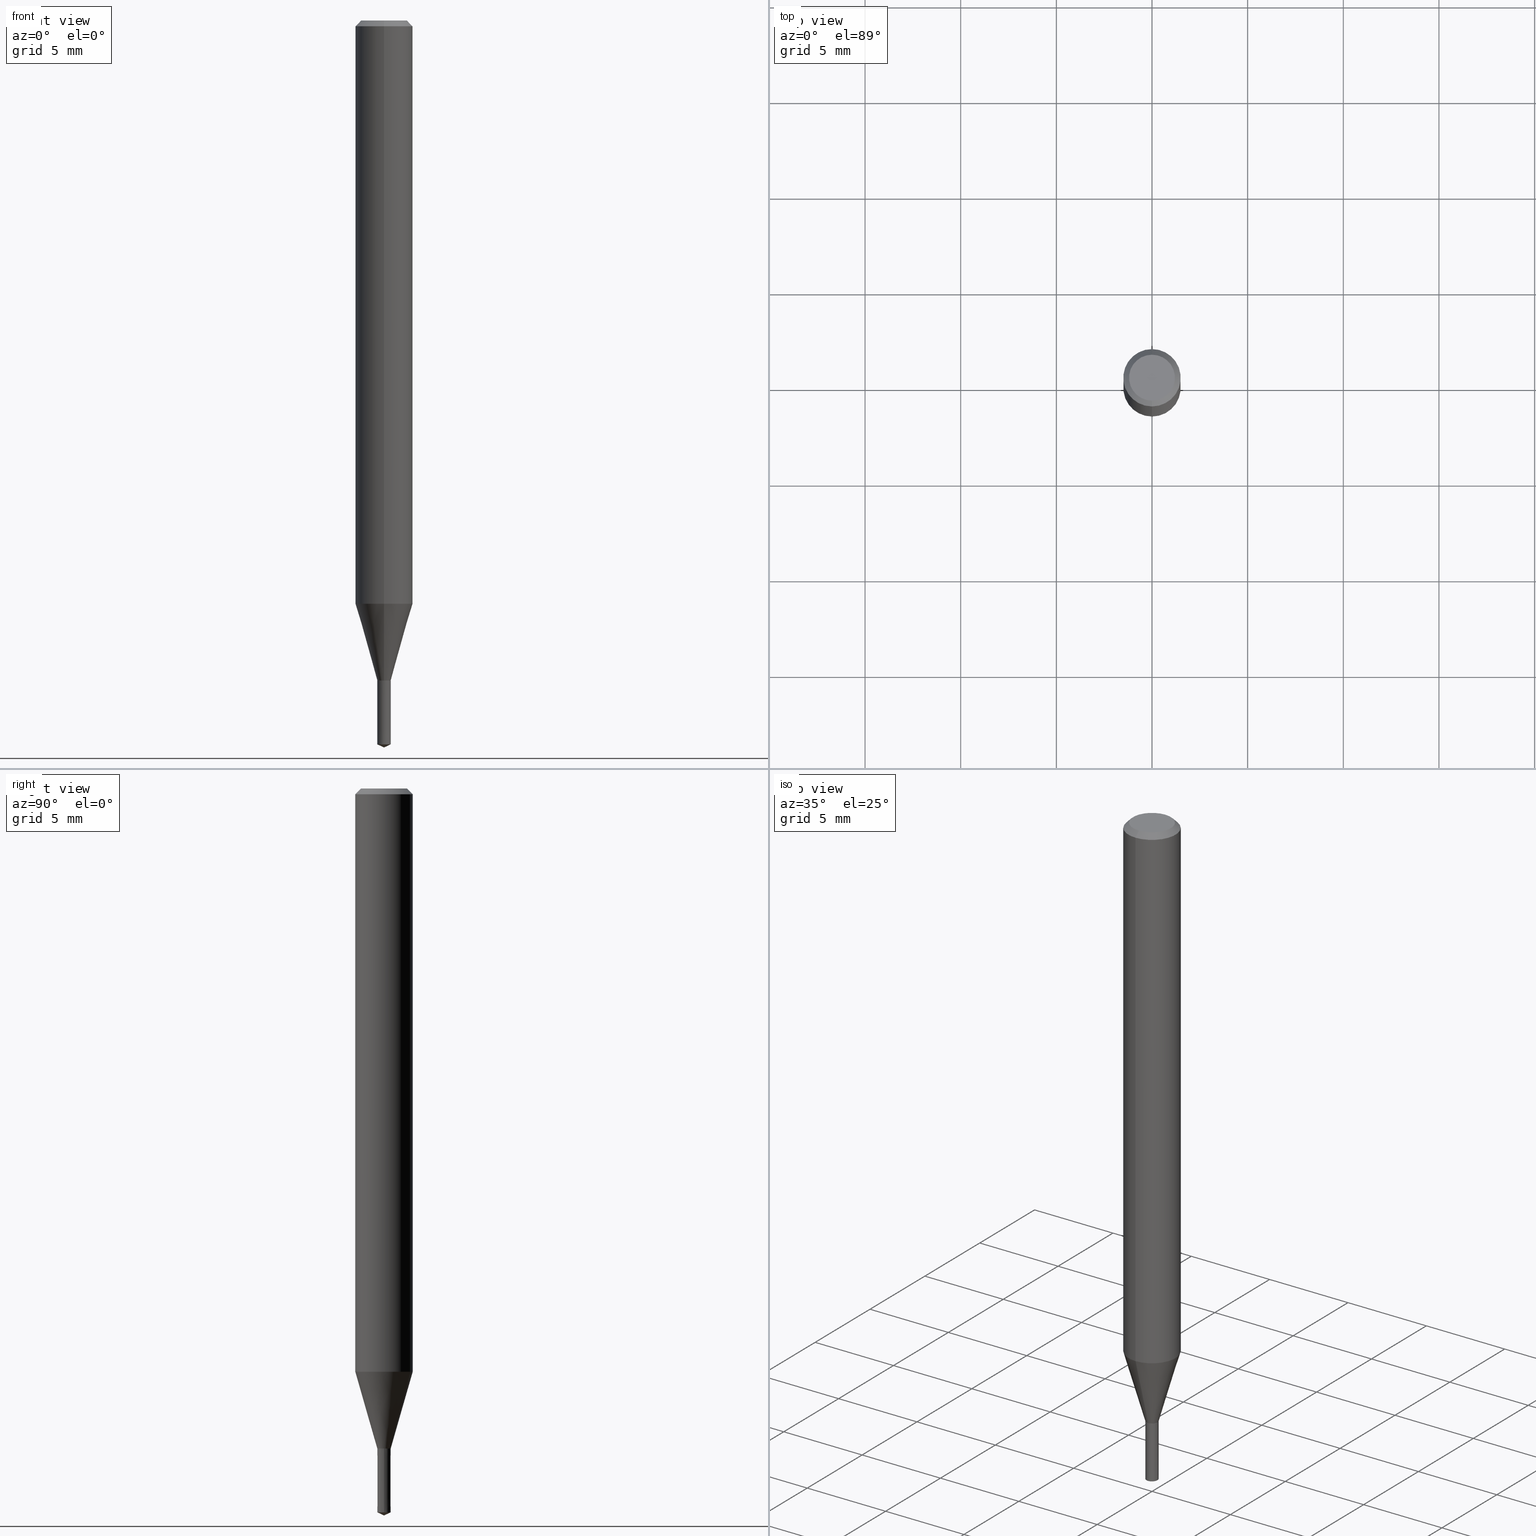
[diagram: canonical four-view strip — front | top / right | iso, engineering-drawing reading convention]
A machine part, canonical four-view strip (front | top / right | iso — engineering-drawing reading convention). The complete STEP part file that produces these views, byte-faithful:
ISO-10303-21;
HEADER;
FILE_DESCRIPTION(('no description'),'unknown implementation level');
FILE_NAME('UTDSX2070-035-Huellk.stp','  ',('CIMSOURCE GmbH'),('CADClick - KiM GmbH - www.kimweb.de'),'unknown preprocess','ACIS','unknown authorization');
FILE_SCHEMA(('automotive_design'));
ENDSEC;
DATA;
#1=MECHANICAL_DESIGN_GEOMETRIC_PRESENTATION_REPRESENTATION(' ',(#14,#15,#16,#17,#18,#19,#20,#21,#22,#23,#24,#25,#26,#27,#28,#29,#30,#31,#32,#33,#34,#35,#36,#37,#38,#39,#40,#41,#42,#43,#44,#45,#46,#47,#48,#49,#50,#51,#52,#53,#54,#55,#56,#57,#58,#59,#60,#61,#62,#63,#64,#65,#66,#67,#68,#69,#70,#71),#10);
#2=PRODUCT_DEFINITION_CONTEXT('',#72,'design');
#3=APPLICATION_PROTOCOL_DEFINITION('INTERNATIONAL STANDARD','automotive_design',1994,#72);
#4=PRODUCT_CATEGORY_RELATIONSHIP('NONE','NONE',#73,#74);
#5=SHAPE_DEFINITION_REPRESENTATION(#75,#76);
#6=PRODUCT_DEFINITION_CONTEXT('',#77,'design');
#7=APPLICATION_PROTOCOL_DEFINITION('INTERNATIONAL STANDARD','automotive_design',1994,#77);
#8=PRODUCT_CATEGORY_RELATIONSHIP('NONE','NONE',#78,#79);
#9=SHAPE_DEFINITION_REPRESENTATION(#80,#81);
#10= (GEOMETRIC_REPRESENTATION_CONTEXT(3)GLOBAL_UNCERTAINTY_ASSIGNED_CONTEXT((#84))GLOBAL_UNIT_ASSIGNED_CONTEXT((#86,#87,#88))REPRESENTATION_CONTEXT('NONE','WORKSPACE'));
#14=STYLED_ITEM('',(#90),#91);
#15=STYLED_ITEM('',(#92),#93);
#16=STYLED_ITEM('',(#94),#95);
#17=STYLED_ITEM('',(#96),#97);
#18=STYLED_ITEM('',(#98),#99);
#19=STYLED_ITEM('',(#100),#101);
#20=STYLED_ITEM('',(#102),#103);
#21=STYLED_ITEM('',(#104),#105);
#22=STYLED_ITEM('',(#106),#107);
#23=STYLED_ITEM('',(#108),#109);
#24=STYLED_ITEM('',(#110),#111);
#25=STYLED_ITEM('',(#112),#113);
#26=STYLED_ITEM('',(#114),#115);
#27=STYLED_ITEM('',(#116),#117);
#28=STYLED_ITEM('',(#118),#119);
#29=STYLED_ITEM('',(#120),#121);
#30=STYLED_ITEM('',(#122),#123);
#31=STYLED_ITEM('',(#124),#125);
#32=STYLED_ITEM('',(#126),#127);
#33=STYLED_ITEM('',(#128),#129);
#34=STYLED_ITEM('',(#130),#131);
#35=STYLED_ITEM('',(#132),#133);
#36=STYLED_ITEM('',(#134),#135);
#37=STYLED_ITEM('',(#136),#137);
#38=STYLED_ITEM('',(#138),#139);
#39=STYLED_ITEM('',(#140),#141);
#40=STYLED_ITEM('',(#142),#143);
#41=STYLED_ITEM('',(#144),#145);
#42=STYLED_ITEM('',(#146),#147);
#43=STYLED_ITEM('',(#148),#149);
#44=STYLED_ITEM('',(#150),#151);
#45=STYLED_ITEM('',(#152),#153);
#46=STYLED_ITEM('',(#154),#155);
#47=STYLED_ITEM('',(#156),#157);
#48=STYLED_ITEM('',(#158),#159);
#49=STYLED_ITEM('',(#160),#161);
#50=STYLED_ITEM('',(#162),#163);
#51=STYLED_ITEM('',(#164),#165);
#52=STYLED_ITEM('',(#166),#167);
#53=STYLED_ITEM('',(#168),#169);
#54=STYLED_ITEM('',(#170),#171);
#55=STYLED_ITEM('',(#172),#173);
#56=STYLED_ITEM('',(#174),#175);
#57=STYLED_ITEM('',(#176),#177);
#58=STYLED_ITEM('',(#178),#179);
#59=STYLED_ITEM('',(#180),#181);
#60=STYLED_ITEM('',(#182),#183);
#61=STYLED_ITEM('',(#184),#185);
#62=STYLED_ITEM('',(#186),#187);
#63=STYLED_ITEM('',(#188),#189);
#64=STYLED_ITEM('',(#190),#191);
#65=STYLED_ITEM('',(#192),#193);
#66=STYLED_ITEM('',(#194),#195);
#67=STYLED_ITEM('',(#196),#197);
#68=STYLED_ITEM('',(#198),#199);
#69=STYLED_ITEM('',(#200),#201);
#70=STYLED_ITEM('',(#202),#203);
#71=STYLED_ITEM('',(#204),#205);
#72=APPLICATION_CONTEXT(' ');
#73=PRODUCT_CATEGORY('part','NONE');
#74=PRODUCT_RELATED_PRODUCT_CATEGORY('detail',' ',(#206));
#75=PRODUCT_DEFINITION_SHAPE('NONE','NONE',#207);
#76=ADVANCED_BREP_SHAPE_REPRESENTATION('1',(#165,#208),#10);
#77=APPLICATION_CONTEXT(' ');
#78=PRODUCT_CATEGORY('part','NONE');
#79=PRODUCT_RELATED_PRODUCT_CATEGORY('detail',' ',(#209));
#80=PRODUCT_DEFINITION_SHAPE('NONE','NONE',#210);
#81=ADVANCED_BREP_SHAPE_REPRESENTATION('2',(#99,#211),#10);
#84=UNCERTAINTY_MEASURE_WITH_UNIT(LENGTH_MEASURE(1.0E-006),#86,'','');
#86= (CONVERSION_BASED_UNIT('MILLIMETRE',#214)LENGTH_UNIT()NAMED_UNIT(#217));
#87= (NAMED_UNIT(#219)PLANE_ANGLE_UNIT()SI_UNIT($,.RADIAN.));
#88= (NAMED_UNIT(#219)SOLID_ANGLE_UNIT()SI_UNIT($,.STERADIAN.));
#90=PRESENTATION_STYLE_ASSIGNMENT((#225));
#91=VERTEX_POINT('',#226);
#92=PRESENTATION_STYLE_ASSIGNMENT((#227));
#93=ADVANCED_FACE('',(#228),#229,.T.);
#94=PRESENTATION_STYLE_ASSIGNMENT((#230));
#95=VERTEX_POINT('',#231);
#96=PRESENTATION_STYLE_ASSIGNMENT((#232));
#97=EDGE_CURVE('',#163,#105,#233,.T.);
#98=PRESENTATION_STYLE_ASSIGNMENT((#234));
#99=MANIFOLD_SOLID_BREP('2',#235);
#100=PRESENTATION_STYLE_ASSIGNMENT((#236));
#101=VERTEX_POINT('',#237);
#102=PRESENTATION_STYLE_ASSIGNMENT((#238));
#103=VERTEX_POINT('',#239);
#104=PRESENTATION_STYLE_ASSIGNMENT((#240));
#105=VERTEX_POINT('',#241);
#106=PRESENTATION_STYLE_ASSIGNMENT((#242));
#107=ADVANCED_FACE('',(#243),#244,.T.);
#108=PRESENTATION_STYLE_ASSIGNMENT((#245));
#109=ADVANCED_FACE('',(#246),#247,.T.);
#110=PRESENTATION_STYLE_ASSIGNMENT((#248));
#111=ADVANCED_FACE('',(#249),#250,.T.);
#112=PRESENTATION_STYLE_ASSIGNMENT((#251));
#113=EDGE_CURVE('',#105,#91,#252,.T.);
#114=PRESENTATION_STYLE_ASSIGNMENT((#253));
#115=EDGE_CURVE('',#183,#173,#254,.T.);
#116=PRESENTATION_STYLE_ASSIGNMENT((#255));
#117=EDGE_CURVE('',#147,#101,#256,.T.);
#118=PRESENTATION_STYLE_ASSIGNMENT((#257));
#119=ADVANCED_FACE('',(#258),#259,.T.);
#120=PRESENTATION_STYLE_ASSIGNMENT((#260));
#121=EDGE_CURVE('',#175,#205,#261,.T.);
#122=PRESENTATION_STYLE_ASSIGNMENT((#262));
#123=EDGE_CURVE('',#205,#175,#263,.T.);
#124=PRESENTATION_STYLE_ASSIGNMENT((#264));
#125=VERTEX_POINT('',#265);
#126=PRESENTATION_STYLE_ASSIGNMENT((#266));
#127=EDGE_CURVE('',#101,#147,#267,.T.);
#128=PRESENTATION_STYLE_ASSIGNMENT((#268));
#129=ADVANCED_FACE('',(#269),#270,.T.);
#130=PRESENTATION_STYLE_ASSIGNMENT((#271));
#131=ADVANCED_FACE('',(#272),#273,.T.);
#132=PRESENTATION_STYLE_ASSIGNMENT((#274));
#133=ADVANCED_FACE('',(#275),#276,.T.);
#134=PRESENTATION_STYLE_ASSIGNMENT((#277));
#135=EDGE_CURVE('',#91,#157,#278,.T.);
#136=PRESENTATION_STYLE_ASSIGNMENT((#279));
#137=ADVANCED_FACE('',(#280),#281,.T.);
#138=PRESENTATION_STYLE_ASSIGNMENT((#282));
#139=EDGE_CURVE('',#179,#159,#283,.T.);
#140=PRESENTATION_STYLE_ASSIGNMENT((#284));
#141=EDGE_CURVE('',#205,#179,#285,.T.);
#142=PRESENTATION_STYLE_ASSIGNMENT((#286));
#143=EDGE_CURVE('',#157,#91,#287,.T.);
#144=PRESENTATION_STYLE_ASSIGNMENT((#288));
#145=EDGE_CURVE('',#125,#105,#289,.T.);
#146=PRESENTATION_STYLE_ASSIGNMENT((#290));
#147=VERTEX_POINT('',#291);
#148=PRESENTATION_STYLE_ASSIGNMENT((#292));
#149=EDGE_CURVE('',#157,#163,#293,.T.);
#150=PRESENTATION_STYLE_ASSIGNMENT((#294));
#151=EDGE_CURVE('',#105,#163,#295,.T.);
#152=PRESENTATION_STYLE_ASSIGNMENT((#296));
#153=EDGE_CURVE('',#183,#125,#297,.T.);
#154=PRESENTATION_STYLE_ASSIGNMENT((#298));
#155=EDGE_CURVE('',#103,#175,#299,.T.);
#156=PRESENTATION_STYLE_ASSIGNMENT((#300));
#157=VERTEX_POINT('',#301);
#158=PRESENTATION_STYLE_ASSIGNMENT((#302));
#159=VERTEX_POINT('',#303);
#160=PRESENTATION_STYLE_ASSIGNMENT((#304));
#161=ADVANCED_FACE('',(#305),#306,.T.);
#162=PRESENTATION_STYLE_ASSIGNMENT((#307));
#163=VERTEX_POINT('',#308);
#164=PRESENTATION_STYLE_ASSIGNMENT((#309));
#165=MANIFOLD_SOLID_BREP('1',#310);
#166=PRESENTATION_STYLE_ASSIGNMENT((#311));
#167=ADVANCED_FACE('',(#312),#313,.T.);
#168=PRESENTATION_STYLE_ASSIGNMENT((#314));
#169=ADVANCED_FACE('',(#315),#316,.T.);
#170=PRESENTATION_STYLE_ASSIGNMENT((#317));
#171=EDGE_CURVE('',#103,#179,#318,.T.);
#172=PRESENTATION_STYLE_ASSIGNMENT((#319));
#173=VERTEX_POINT('',#320);
#174=PRESENTATION_STYLE_ASSIGNMENT((#321));
#175=VERTEX_POINT('',#322);
#176=PRESENTATION_STYLE_ASSIGNMENT((#323));
#177=EDGE_CURVE('',#159,#103,#324,.T.);
#178=PRESENTATION_STYLE_ASSIGNMENT((#325));
#179=VERTEX_POINT('',#326);
#180=PRESENTATION_STYLE_ASSIGNMENT((#327));
#181=EDGE_CURVE('',#125,#95,#328,.T.);
#182=PRESENTATION_STYLE_ASSIGNMENT((#329));
#183=VERTEX_POINT('',#330);
#184=PRESENTATION_STYLE_ASSIGNMENT((#331));
#185=ADVANCED_FACE('',(#332),#333,.T.);
#186=PRESENTATION_STYLE_ASSIGNMENT((#334));
#187=EDGE_CURVE('',#95,#173,#335,.T.);
#188=PRESENTATION_STYLE_ASSIGNMENT((#336));
#189=EDGE_CURVE('',#95,#125,#337,.T.);
#190=PRESENTATION_STYLE_ASSIGNMENT((#338));
#191=EDGE_CURVE('',#163,#95,#339,.T.);
#192=PRESENTATION_STYLE_ASSIGNMENT((#340));
#193=EDGE_CURVE('',#147,#157,#341,.T.);
#194=PRESENTATION_STYLE_ASSIGNMENT((#342));
#195=ADVANCED_FACE('',(#343),#344,.T.);
#196=PRESENTATION_STYLE_ASSIGNMENT((#345));
#197=EDGE_CURVE('',#179,#103,#346,.T.);
#198=PRESENTATION_STYLE_ASSIGNMENT((#347));
#199=EDGE_CURVE('',#91,#101,#348,.T.);
#200=PRESENTATION_STYLE_ASSIGNMENT((#349));
#201=EDGE_CURVE('',#173,#183,#350,.T.);
#202=PRESENTATION_STYLE_ASSIGNMENT((#351));
#203=ADVANCED_FACE('',(#352),#353,.T.);
#204=PRESENTATION_STYLE_ASSIGNMENT((#354));
#205=VERTEX_POINT('',#355);
#206=PRODUCT('1','1','PART-1-DESC',(#356));
#207=PRODUCT_DEFINITION('NONE','NONE',#357,#2);
#208=AXIS2_PLACEMENT_3D('',#358,#359,#360);
#209=PRODUCT('2','2','PART-2-DESC',(#361));
#210=PRODUCT_DEFINITION('NONE','NONE',#362,#6);
#211=AXIS2_PLACEMENT_3D('',#363,#364,#365);
#214=LENGTH_MEASURE_WITH_UNIT(LENGTH_MEASURE(1.0),#366);
#217=DIMENSIONAL_EXPONENTS(1.0,0.0,0.0,0.0,0.0,0.0,0.0);
#219=DIMENSIONAL_EXPONENTS(0.0,0.0,0.0,0.0,0.0,0.0,0.0);
#225=POINT_STYLE(' ',#367,POSITIVE_LENGTH_MEASURE(1.0E-006),#368);
#226=CARTESIAN_POINT('',(0.0,0.35,-34.4991339745962));
#227=SURFACE_STYLE_USAGE(.BOTH.,#369);
#228=FACE_OUTER_BOUND('',#370,.T.);
#229=CYLINDRICAL_SURFACE('',#371,1.5);
#230=POINT_STYLE(' ',#372,POSITIVE_LENGTH_MEASURE(1.0E-006),#373);
#231=CARTESIAN_POINT('',(1.83690953073357E-016,-1.5,-0.300000000000001));
#232=CURVE_STYLE('',#374,POSITIVE_LENGTH_MEASURE(1.0E-006),#375);
#233=CIRCLE('',#376,1.5);
#234=SURFACE_STYLE_USAGE(.BOTH.,#377);
#235=CLOSED_SHELL('',(#111,#203,#131,#119,#195));
#236=POINT_STYLE(' ',#378,POSITIVE_LENGTH_MEASURE(1.0E-006),#379);
#237=CARTESIAN_POINT('',(0.0,0.3505,-34.5));
#238=POINT_STYLE(' ',#380,POSITIVE_LENGTH_MEASURE(1.0E-006),#381);
#239=CARTESIAN_POINT('',(0.35,4.28612223837832E-017,-37.83679232));
#240=POINT_STYLE(' ',#382,POSITIVE_LENGTH_MEASURE(1.0E-006),#383);
#241=CARTESIAN_POINT('',(0.0,1.5,-30.489));
#242=SURFACE_STYLE_USAGE(.BOTH.,#384);
#243=FACE_OUTER_BOUND('',#385,.T.);
#244=CONICAL_SURFACE('',#386,0.35025,0.523598775598408);
#245=SURFACE_STYLE_USAGE(.BOTH.,#387);
#246=FACE_OUTER_BOUND('',#388,.T.);
#247=CONICAL_SURFACE('',#389,0.925,0.279278622561771);
#248=SURFACE_STYLE_USAGE(.BOTH.,#390);
#249=FACE_OUTER_BOUND('',#391,.T.);
#250=CONICAL_SURFACE('',#392,0.175,1.13446401462768);
#251=CURVE_STYLE('',#393,POSITIVE_LENGTH_MEASURE(1.0E-006),#394);
#252=LINE('',#395,#396);
#253=CURVE_STYLE('',#397,POSITIVE_LENGTH_MEASURE(1.0E-006),#398);
#254=CIRCLE('',#399,1.2);
#255=CURVE_STYLE('',#400,POSITIVE_LENGTH_MEASURE(1.0E-006),#401);
#256=CIRCLE('',#402,0.3505);
#257=SURFACE_STYLE_USAGE(.BOTH.,#403);
#258=FACE_OUTER_BOUND('',#404,.T.);
#259=CONICAL_SURFACE('',#405,0.3505,0.000299689004936983);
#260=CURVE_STYLE('',#406,POSITIVE_LENGTH_MEASURE(1.0E-006),#407);
#261=CIRCLE('',#408,0.351);
#262=CURVE_STYLE('',#409,POSITIVE_LENGTH_MEASURE(1.0E-006),#410);
#263=CIRCLE('',#411,0.351);
#264=POINT_STYLE(' ',#412,POSITIVE_LENGTH_MEASURE(1.0E-006),#413);
#265=CARTESIAN_POINT('',(0.0,1.5,-0.300000000000001));
#266=CURVE_STYLE('',#414,POSITIVE_LENGTH_MEASURE(1.0E-006),#415);
#267=CIRCLE('',#416,0.3505);
#268=SURFACE_STYLE_USAGE(.BOTH.,#417);
#269=FACE_OUTER_BOUND('',#418,.T.);
#270=CONICAL_SURFACE('',#419,0.35025,0.523598775598408);
#271=SURFACE_STYLE_USAGE(.BOTH.,#420);
#272=FACE_OUTER_BOUND('',#421,.T.);
#273=PLANE('',#422);
#274=SURFACE_STYLE_USAGE(.BOTH.,#423);
#275=FACE_OUTER_BOUND('',#424,.T.);
#276=CONICAL_SURFACE('',#425,0.925,0.279278622561771);
#277=CURVE_STYLE('',#426,POSITIVE_LENGTH_MEASURE(1.0E-006),#427);
#278=CIRCLE('',#428,0.35);
#279=SURFACE_STYLE_USAGE(.BOTH.,#429);
#280=FACE_OUTER_BOUND('',#430,.T.);
#281=PLANE('',#431);
#282=CURVE_STYLE('',#432,POSITIVE_LENGTH_MEASURE(1.0E-006),#433);
#283=LINE('',#434,#435);
#284=CURVE_STYLE('',#436,POSITIVE_LENGTH_MEASURE(1.0E-006),#437);
#285=LINE('',#438,#439);
#286=CURVE_STYLE('',#440,POSITIVE_LENGTH_MEASURE(1.0E-006),#441);
#287=CIRCLE('',#442,0.35);
#288=CURVE_STYLE('',#443,POSITIVE_LENGTH_MEASURE(1.0E-006),#444);
#289=LINE('',#445,#446);
#290=POINT_STYLE(' ',#447,POSITIVE_LENGTH_MEASURE(1.0E-006),#448);
#291=CARTESIAN_POINT('',(4.29224527014743E-017,-0.3505,-34.5));
#292=CURVE_STYLE('',#449,POSITIVE_LENGTH_MEASURE(1.0E-006),#450);
#293=LINE('',#451,#452);
#294=CURVE_STYLE('',#453,POSITIVE_LENGTH_MEASURE(1.0E-006),#454);
#295=CIRCLE('',#455,1.5);
#296=CURVE_STYLE('',#456,POSITIVE_LENGTH_MEASURE(1.0E-006),#457);
#297=LINE('',#458,#459);
#298=CURVE_STYLE('',#460,POSITIVE_LENGTH_MEASURE(1.0E-006),#461);
#299=LINE('',#462,#463);
#300=POINT_STYLE(' ',#464,POSITIVE_LENGTH_MEASURE(1.0E-006),#465);
#301=CARTESIAN_POINT('',(4.28612223837832E-017,-0.35,-34.4991339745962));
#302=POINT_STYLE(' ',#466,POSITIVE_LENGTH_MEASURE(1.0E-006),#467);
#303=CARTESIAN_POINT('',(0.0,0.0,-38.0));
#304=SURFACE_STYLE_USAGE(.BOTH.,#468);
#305=FACE_OUTER_BOUND('',#469,.T.);
#306=PLANE('',#470);
#307=POINT_STYLE(' ',#471,POSITIVE_LENGTH_MEASURE(1.0E-006),#472);
#308=CARTESIAN_POINT('',(1.83690953073357E-016,-1.5,-30.489));
#309=SURFACE_STYLE_USAGE(.BOTH.,#473);
#310=CLOSED_SHELL('',(#107,#133,#169,#167,#137,#185,#93,#109,#129,#161));
#311=SURFACE_STYLE_USAGE(.BOTH.,#474);
#312=FACE_OUTER_BOUND('',#475,.T.);
#313=CONICAL_SURFACE('',#476,1.35,0.785398163397447);
#314=SURFACE_STYLE_USAGE(.BOTH.,#477);
#315=FACE_OUTER_BOUND('',#478,.T.);
#316=CYLINDRICAL_SURFACE('',#479,1.5);
#317=CURVE_STYLE('',#480,POSITIVE_LENGTH_MEASURE(1.0E-006),#481);
#318=CIRCLE('',#482,0.35);
#319=POINT_STYLE(' ',#483,POSITIVE_LENGTH_MEASURE(1.0E-006),#484);
#320=CARTESIAN_POINT('',(1.46952762458685E-016,-1.2,0.0));
#321=POINT_STYLE(' ',#485,POSITIVE_LENGTH_MEASURE(1.0E-006),#486);
#322=CARTESIAN_POINT('',(0.351,4.29836830191655E-017,-34.5));
#323=CURVE_STYLE('',#487,POSITIVE_LENGTH_MEASURE(1.0E-006),#488);
#324=LINE('',#489,#490);
#325=POINT_STYLE(' ',#491,POSITIVE_LENGTH_MEASURE(1.0E-006),#492);
#326=CARTESIAN_POINT('',(-0.35,0.0,-37.83679232));
#327=CURVE_STYLE('',#493,POSITIVE_LENGTH_MEASURE(1.0E-006),#494);
#328=CIRCLE('',#495,1.5);
#329=POINT_STYLE(' ',#496,POSITIVE_LENGTH_MEASURE(1.0E-006),#497);
#330=CARTESIAN_POINT('',(0.0,1.2,0.0));
#331=SURFACE_STYLE_USAGE(.BOTH.,#498);
#332=FACE_OUTER_BOUND('',#499,.T.);
#333=CONICAL_SURFACE('',#500,1.35,0.785398163397447);
#334=CURVE_STYLE('',#501,POSITIVE_LENGTH_MEASURE(1.0E-006),#502);
#335=LINE('',#503,#504);
#336=CURVE_STYLE('',#505,POSITIVE_LENGTH_MEASURE(1.0E-006),#506);
#337=CIRCLE('',#507,1.5);
#338=CURVE_STYLE('',#508,POSITIVE_LENGTH_MEASURE(1.0E-006),#509);
#339=LINE('',#510,#511);
#340=CURVE_STYLE('',#512,POSITIVE_LENGTH_MEASURE(1.0E-006),#513);
#341=LINE('',#514,#515);
#342=SURFACE_STYLE_USAGE(.BOTH.,#516);
#343=FACE_OUTER_BOUND('',#517,.T.);
#344=CONICAL_SURFACE('',#518,0.175,1.13446401462768);
#345=CURVE_STYLE('',#519,POSITIVE_LENGTH_MEASURE(1.0E-006),#520);
#346=CIRCLE('',#521,0.35);
#347=CURVE_STYLE('',#522,POSITIVE_LENGTH_MEASURE(1.0E-006),#523);
#348=LINE('',#524,#525);
#349=CURVE_STYLE('',#526,POSITIVE_LENGTH_MEASURE(1.0E-006),#527);
#350=CIRCLE('',#528,1.2);
#351=SURFACE_STYLE_USAGE(.BOTH.,#529);
#352=FACE_OUTER_BOUND('',#530,.T.);
#353=CONICAL_SURFACE('',#531,0.3505,0.000299689004936983);
#354=POINT_STYLE(' ',#532,POSITIVE_LENGTH_MEASURE(1.0E-006),#533);
#355=CARTESIAN_POINT('',(-0.351,0.0,-34.5));
#356=PRODUCT_CONTEXT('',#72,'mechanical');
#357=PRODUCT_DEFINITION_FORMATION_WITH_SPECIFIED_SOURCE(' ','NONE',#206,.NOT_KNOWN.);
#358=CARTESIAN_POINT('',(0.0,0.0,0.0));
#359=DIRECTION('',(0.0,0.0,1.0));
#360=DIRECTION('',(1.0,0.0,0.0));
#361=PRODUCT_CONTEXT('',#77,'mechanical');
#362=PRODUCT_DEFINITION_FORMATION_WITH_SPECIFIED_SOURCE(' ','NONE',#209,.NOT_KNOWN.);
#363=CARTESIAN_POINT('',(0.0,0.0,0.0));
#364=DIRECTION('',(0.0,0.0,1.0));
#365=DIRECTION('',(1.0,0.0,0.0));
#366= (NAMED_UNIT(#217)LENGTH_UNIT()SI_UNIT(.MILLI.,.METRE.));
#367=PRE_DEFINED_MARKER('');
#368=COLOUR_RGB('',0.498039215803146,0.498039215803146,0.498039215803146);
#369=SURFACE_SIDE_STYLE('',(#535));
#370=EDGE_LOOP('',(#536,#537,#538,#539));
#371=AXIS2_PLACEMENT_3D('',#540,#541,#542);
#372=PRE_DEFINED_MARKER('');
#373=COLOUR_RGB('',0.498039215803146,0.498039215803146,0.498039215803146);
#374=DRAUGHTING_PRE_DEFINED_CURVE_FONT('continuous');
#375=COLOUR_RGB('',0.498039215803146,0.498039215803146,0.498039215803146);
#376=AXIS2_PLACEMENT_3D('',#543,#544,#545);
#377=SURFACE_SIDE_STYLE('',(#546));
#378=PRE_DEFINED_MARKER('');
#379=COLOUR_RGB('',0.498039215803146,0.498039215803146,0.498039215803146);
#380=PRE_DEFINED_MARKER('');
#381=COLOUR_RGB('',0.800000011920929,0.800000011920929,0.800000011920929);
#382=PRE_DEFINED_MARKER('');
#383=COLOUR_RGB('',0.498039215803146,0.498039215803146,0.498039215803146);
#384=SURFACE_SIDE_STYLE('',(#547));
#385=EDGE_LOOP('',(#548,#549,#550,#551));
#386=AXIS2_PLACEMENT_3D('',#552,#553,#554);
#387=SURFACE_SIDE_STYLE('',(#555));
#388=EDGE_LOOP('',(#556,#557,#558,#559));
#389=AXIS2_PLACEMENT_3D('',#560,#561,#562);
#390=SURFACE_SIDE_STYLE('',(#563));
#391=EDGE_LOOP('',(#564,#565,#566));
#392=AXIS2_PLACEMENT_3D('',#567,#568,#569);
#393=DRAUGHTING_PRE_DEFINED_CURVE_FONT('continuous');
#394=COLOUR_RGB('',0.498039215803146,0.498039215803146,0.498039215803146);
#395=CARTESIAN_POINT('',(-1.1327608772857E-016,0.925,-32.4940669872981));
#396=VECTOR('',#570,1.0);
#397=DRAUGHTING_PRE_DEFINED_CURVE_FONT('continuous');
#398=COLOUR_RGB('',0.498039215803146,0.498039215803146,0.498039215803146);
#399=AXIS2_PLACEMENT_3D('',#571,#572,#573);
#400=DRAUGHTING_PRE_DEFINED_CURVE_FONT('continuous');
#401=COLOUR_RGB('',0.498039215803146,0.498039215803146,0.498039215803146);
#402=AXIS2_PLACEMENT_3D('',#574,#575,#576);
#403=SURFACE_SIDE_STYLE('',(#577));
#404=EDGE_LOOP('',(#578,#579,#580,#581));
#405=AXIS2_PLACEMENT_3D('',#582,#583,#584);
#406=DRAUGHTING_PRE_DEFINED_CURVE_FONT('continuous');
#407=COLOUR_RGB('',0.800000011920929,0.800000011920929,0.800000011920929);
#408=AXIS2_PLACEMENT_3D('',#585,#586,#587);
#409=DRAUGHTING_PRE_DEFINED_CURVE_FONT('continuous');
#410=COLOUR_RGB('',0.800000011920929,0.800000011920929,0.800000011920929);
#411=AXIS2_PLACEMENT_3D('',#588,#589,#590);
#412=PRE_DEFINED_MARKER('');
#413=COLOUR_RGB('',0.498039215803146,0.498039215803146,0.498039215803146);
#414=DRAUGHTING_PRE_DEFINED_CURVE_FONT('continuous');
#415=COLOUR_RGB('',0.498039215803146,0.498039215803146,0.498039215803146);
#416=AXIS2_PLACEMENT_3D('',#591,#592,#593);
#417=SURFACE_SIDE_STYLE('',(#594));
#418=EDGE_LOOP('',(#595,#596,#597,#598));
#419=AXIS2_PLACEMENT_3D('',#599,#600,#601);
#420=SURFACE_SIDE_STYLE('',(#602));
#421=EDGE_LOOP('',(#603,#604));
#422=AXIS2_PLACEMENT_3D('',#605,#606,#607);
#423=SURFACE_SIDE_STYLE('',(#608));
#424=EDGE_LOOP('',(#609,#610,#611,#612));
#425=AXIS2_PLACEMENT_3D('',#613,#614,#615);
#426=DRAUGHTING_PRE_DEFINED_CURVE_FONT('continuous');
#427=COLOUR_RGB('',0.498039215803146,0.498039215803146,0.498039215803146);
#428=AXIS2_PLACEMENT_3D('',#616,#617,#618);
#429=SURFACE_SIDE_STYLE('',(#619));
#430=EDGE_LOOP('',(#620,#621));
#431=AXIS2_PLACEMENT_3D('',#622,#623,#624);
#432=DRAUGHTING_PRE_DEFINED_CURVE_FONT('continuous');
#433=COLOUR_RGB('',0.800000011920929,0.800000011920929,0.800000011920929);
#434=CARTESIAN_POINT('',(-0.175,-2.14306111918916E-017,-37.91839616));
#435=VECTOR('',#625,1.0);
#436=DRAUGHTING_PRE_DEFINED_CURVE_FONT('continuous');
#437=COLOUR_RGB('',0.800000011920929,0.800000011920929,0.800000011920929);
#438=CARTESIAN_POINT('',(-0.3505,-4.29224527014743E-017,-36.16839616));
#439=VECTOR('',#626,1.0);
#440=DRAUGHTING_PRE_DEFINED_CURVE_FONT('continuous');
#441=COLOUR_RGB('',0.498039215803146,0.498039215803146,0.498039215803146);
#442=AXIS2_PLACEMENT_3D('',#627,#628,#629);
#443=DRAUGHTING_PRE_DEFINED_CURVE_FONT('continuous');
#444=COLOUR_RGB('',0.498039215803146,0.498039215803146,0.498039215803146);
#445=CARTESIAN_POINT('',(-1.83690953073357E-016,1.5,-15.3945));
#446=VECTOR('',#630,1.0);
#447=PRE_DEFINED_MARKER('');
#448=COLOUR_RGB('',0.498039215803146,0.498039215803146,0.498039215803146);
#449=DRAUGHTING_PRE_DEFINED_CURVE_FONT('continuous');
#450=COLOUR_RGB('',0.498039215803146,0.498039215803146,0.498039215803146);
#451=CARTESIAN_POINT('',(1.1327608772857E-016,-0.925,-32.4940669872981));
#452=VECTOR('',#631,1.0);
#453=DRAUGHTING_PRE_DEFINED_CURVE_FONT('continuous');
#454=COLOUR_RGB('',0.498039215803146,0.498039215803146,0.498039215803146);
#455=AXIS2_PLACEMENT_3D('',#632,#633,#634);
#456=DRAUGHTING_PRE_DEFINED_CURVE_FONT('continuous');
#457=COLOUR_RGB('',0.498039215803146,0.498039215803146,0.498039215803146);
#458=CARTESIAN_POINT('',(-1.65321857766021E-016,1.35,-0.149999999999999));
#459=VECTOR('',#635,1.0);
#460=DRAUGHTING_PRE_DEFINED_CURVE_FONT('continuous');
#461=COLOUR_RGB('',0.800000011920929,0.800000011920929,0.800000011920929);
#462=CARTESIAN_POINT('',(0.3505,4.29224527014743E-017,-36.16839616));
#463=VECTOR('',#636,1.0);
#464=PRE_DEFINED_MARKER('');
#465=COLOUR_RGB('',0.498039215803146,0.498039215803146,0.498039215803146);
#466=PRE_DEFINED_MARKER('');
#467=COLOUR_RGB('',0.800000011920929,0.800000011920929,0.800000011920929);
#468=SURFACE_SIDE_STYLE('',(#637));
#469=EDGE_LOOP('',(#638,#639));
#470=AXIS2_PLACEMENT_3D('',#640,#641,#642);
#471=PRE_DEFINED_MARKER('');
#472=COLOUR_RGB('',0.498039215803146,0.498039215803146,0.498039215803146);
#473=SURFACE_SIDE_STYLE('',(#643));
#474=SURFACE_SIDE_STYLE('',(#644));
#475=EDGE_LOOP('',(#645,#646,#647,#648));
#476=AXIS2_PLACEMENT_3D('',#649,#650,#651);
#477=SURFACE_SIDE_STYLE('',(#652));
#478=EDGE_LOOP('',(#653,#654,#655,#656));
#479=AXIS2_PLACEMENT_3D('',#657,#658,#659);
#480=DRAUGHTING_PRE_DEFINED_CURVE_FONT('continuous');
#481=COLOUR_RGB('',0.800000011920929,0.800000011920929,0.800000011920929);
#482=AXIS2_PLACEMENT_3D('',#660,#661,#662);
#483=PRE_DEFINED_MARKER('');
#484=COLOUR_RGB('',0.498039215803146,0.498039215803146,0.498039215803146);
#485=PRE_DEFINED_MARKER('');
#486=COLOUR_RGB('',0.800000011920929,0.800000011920929,0.800000011920929);
#487=DRAUGHTING_PRE_DEFINED_CURVE_FONT('continuous');
#488=COLOUR_RGB('',0.800000011920929,0.800000011920929,0.800000011920929);
#489=CARTESIAN_POINT('',(0.175,2.14306111918916E-017,-37.91839616));
#490=VECTOR('',#663,1.0);
#491=PRE_DEFINED_MARKER('');
#492=COLOUR_RGB('',0.800000011920929,0.800000011920929,0.800000011920929);
#493=DRAUGHTING_PRE_DEFINED_CURVE_FONT('continuous');
#494=COLOUR_RGB('',0.498039215803146,0.498039215803146,0.498039215803146);
#495=AXIS2_PLACEMENT_3D('',#664,#665,#666);
#496=PRE_DEFINED_MARKER('');
#497=COLOUR_RGB('',0.498039215803146,0.498039215803146,0.498039215803146);
#498=SURFACE_SIDE_STYLE('',(#667));
#499=EDGE_LOOP('',(#668,#669,#670,#671));
#500=AXIS2_PLACEMENT_3D('',#672,#673,#674);
#501=DRAUGHTING_PRE_DEFINED_CURVE_FONT('continuous');
#502=COLOUR_RGB('',0.498039215803146,0.498039215803146,0.498039215803146);
#503=CARTESIAN_POINT('',(1.65321857766021E-016,-1.35,-0.149999999999999));
#504=VECTOR('',#675,1.0);
#505=DRAUGHTING_PRE_DEFINED_CURVE_FONT('continuous');
#506=COLOUR_RGB('',0.498039215803146,0.498039215803146,0.498039215803146);
#507=AXIS2_PLACEMENT_3D('',#676,#677,#678);
#508=DRAUGHTING_PRE_DEFINED_CURVE_FONT('continuous');
#509=COLOUR_RGB('',0.498039215803146,0.498039215803146,0.498039215803146);
#510=CARTESIAN_POINT('',(1.83690953073357E-016,-1.5,-15.3945));
#511=VECTOR('',#679,1.0);
#512=DRAUGHTING_PRE_DEFINED_CURVE_FONT('continuous');
#513=COLOUR_RGB('',0.498039215803146,0.498039215803146,0.498039215803146);
#514=CARTESIAN_POINT('',(4.28918375426288E-017,-0.35025,-34.4995669872981));
#515=VECTOR('',#680,1.0);
#516=SURFACE_SIDE_STYLE('',(#681));
#517=EDGE_LOOP('',(#682,#683,#684));
#518=AXIS2_PLACEMENT_3D('',#685,#686,#687);
#519=DRAUGHTING_PRE_DEFINED_CURVE_FONT('continuous');
#520=COLOUR_RGB('',0.800000011920929,0.800000011920929,0.800000011920929);
#521=AXIS2_PLACEMENT_3D('',#688,#689,#690);
#522=DRAUGHTING_PRE_DEFINED_CURVE_FONT('continuous');
#523=COLOUR_RGB('',0.498039215803146,0.498039215803146,0.498039215803146);
#524=CARTESIAN_POINT('',(-4.28918375426288E-017,0.35025,-34.4995669872981));
#525=VECTOR('',#691,1.0);
#526=DRAUGHTING_PRE_DEFINED_CURVE_FONT('continuous');
#527=COLOUR_RGB('',0.498039215803146,0.498039215803146,0.498039215803146);
#528=AXIS2_PLACEMENT_3D('',#692,#693,#694);
#529=SURFACE_SIDE_STYLE('',(#695));
#530=EDGE_LOOP('',(#696,#697,#698,#699));
#531=AXIS2_PLACEMENT_3D('',#700,#701,#702);
#532=PRE_DEFINED_MARKER('');
#533=COLOUR_RGB('',0.800000011920929,0.800000011920929,0.800000011920929);
#535=SURFACE_STYLE_FILL_AREA(#703);
#536=ORIENTED_EDGE('',*,*,#145,.T.);
#537=ORIENTED_EDGE('',*,*,#97,.F.);
#538=ORIENTED_EDGE('',*,*,#191,.T.);
#539=ORIENTED_EDGE('',*,*,#189,.T.);
#540=CARTESIAN_POINT('',(0.0,0.0,-15.3945));
#541=DIRECTION('',(-0.0,-0.0,1.0));
#542=DIRECTION('',(0.0,1.0,0.0));
#543=CARTESIAN_POINT('',(0.0,0.0,-30.489));
#544=DIRECTION('',(0.0,0.0,-1.0));
#545=DIRECTION('',(0.0,1.0,0.0));
#546=SURFACE_STYLE_FILL_AREA(#704);
#547=SURFACE_STYLE_FILL_AREA(#705);
#548=ORIENTED_EDGE('',*,*,#199,.F.);
#549=ORIENTED_EDGE('',*,*,#135,.T.);
#550=ORIENTED_EDGE('',*,*,#193,.F.);
#551=ORIENTED_EDGE('',*,*,#127,.F.);
#552=CARTESIAN_POINT('',(0.0,0.0,-34.4995669872981));
#553=DIRECTION('',(0.0,-0.0,-1.0));
#554=DIRECTION('',(0.0,1.0,0.0));
#555=SURFACE_STYLE_FILL_AREA(#706);
#556=ORIENTED_EDGE('',*,*,#113,.T.);
#557=ORIENTED_EDGE('',*,*,#143,.F.);
#558=ORIENTED_EDGE('',*,*,#149,.T.);
#559=ORIENTED_EDGE('',*,*,#97,.T.);
#560=CARTESIAN_POINT('',(0.0,0.0,-32.4940669872981));
#561=DIRECTION('',(-0.0,-0.0,1.0));
#562=DIRECTION('',(0.0,1.0,0.0));
#563=SURFACE_STYLE_FILL_AREA(#707);
#564=ORIENTED_EDGE('',*,*,#177,.F.);
#565=ORIENTED_EDGE('',*,*,#139,.F.);
#566=ORIENTED_EDGE('',*,*,#197,.T.);
#567=CARTESIAN_POINT('',(0.0,0.0,-37.91839616));
#568=DIRECTION('',(-0.0,-0.0,1.0));
#569=DIRECTION('',(-1.0,0.0,0.0));
#570=DIRECTION('',(3.37577795527378E-017,-0.275662293008437,-0.96125454496368));
#571=CARTESIAN_POINT('',(0.0,0.0,0.0));
#572=DIRECTION('',(0.0,0.0,-1.0));
#573=DIRECTION('',(0.0,1.0,0.0));
#574=CARTESIAN_POINT('',(0.0,0.0,-34.5));
#575=DIRECTION('',(0.0,0.0,-1.0));
#576=DIRECTION('',(0.0,1.0,0.0));
#577=SURFACE_STYLE_FILL_AREA(#708);
#578=ORIENTED_EDGE('',*,*,#141,.T.);
#579=ORIENTED_EDGE('',*,*,#171,.F.);
#580=ORIENTED_EDGE('',*,*,#155,.T.);
#581=ORIENTED_EDGE('',*,*,#121,.T.);
#582=CARTESIAN_POINT('',(0.0,0.0,-36.16839616));
#583=DIRECTION('',(-0.0,-0.0,1.0));
#584=DIRECTION('',(-1.0,0.0,0.0));
#585=CARTESIAN_POINT('',(0.0,0.0,-34.5));
#586=DIRECTION('',(0.0,0.0,-1.0));
#587=DIRECTION('',(-1.0,0.0,0.0));
#588=CARTESIAN_POINT('',(0.0,0.0,-34.5));
#589=DIRECTION('',(0.0,0.0,-1.0));
#590=DIRECTION('',(-1.0,0.0,0.0));
#591=CARTESIAN_POINT('',(0.0,0.0,-34.5));
#592=DIRECTION('',(0.0,0.0,-1.0));
#593=DIRECTION('',(0.0,1.0,0.0));
#594=SURFACE_STYLE_FILL_AREA(#709);
#595=ORIENTED_EDGE('',*,*,#199,.T.);
#596=ORIENTED_EDGE('',*,*,#117,.F.);
#597=ORIENTED_EDGE('',*,*,#193,.T.);
#598=ORIENTED_EDGE('',*,*,#143,.T.);
#599=CARTESIAN_POINT('',(0.0,0.0,-34.4995669872981));
#600=DIRECTION('',(0.0,-0.0,-1.0));
#601=DIRECTION('',(0.0,1.0,0.0));
#602=SURFACE_STYLE_FILL_AREA(#710);
#603=ORIENTED_EDGE('',*,*,#123,.F.);
#604=ORIENTED_EDGE('',*,*,#121,.F.);
#605=CARTESIAN_POINT('',(-0.1755,0.0,-34.5));
#606=DIRECTION('',(0.0,0.0,1.0));
#607=DIRECTION('',(1.0,0.0,0.0));
#608=SURFACE_STYLE_FILL_AREA(#711);
#609=ORIENTED_EDGE('',*,*,#113,.F.);
#610=ORIENTED_EDGE('',*,*,#151,.T.);
#611=ORIENTED_EDGE('',*,*,#149,.F.);
#612=ORIENTED_EDGE('',*,*,#135,.F.);
#613=CARTESIAN_POINT('',(0.0,0.0,-32.4940669872981));
#614=DIRECTION('',(-0.0,-0.0,1.0));
#615=DIRECTION('',(0.0,1.0,0.0));
#616=CARTESIAN_POINT('',(0.0,0.0,-34.4991339745962));
#617=DIRECTION('',(0.0,0.0,-1.0));
#618=DIRECTION('',(0.0,1.0,0.0));
#619=SURFACE_STYLE_FILL_AREA(#712);
#620=ORIENTED_EDGE('',*,*,#115,.F.);
#621=ORIENTED_EDGE('',*,*,#201,.F.);
#622=CARTESIAN_POINT('',(0.0,0.6,0.0));
#623=DIRECTION('',(-0.0,0.0,1.0));
#624=DIRECTION('',(0.0,-1.0,0.0));
#625=DIRECTION('',(0.906307787388001,1.10987027495405E-016,-0.422618260987226));
#626=DIRECTION('',(0.000299689000450964,3.67001054122927E-020,-0.999999955093251));
#627=CARTESIAN_POINT('',(0.0,0.0,-34.4991339745962));
#628=DIRECTION('',(0.0,0.0,-1.0));
#629=DIRECTION('',(0.0,1.0,0.0));
#630=DIRECTION('',(0.0,0.0,-1.0));
#631=DIRECTION('',(3.37577795527378E-017,-0.275662293008437,0.96125454496368));
#632=CARTESIAN_POINT('',(0.0,0.0,-30.489));
#633=DIRECTION('',(0.0,0.0,-1.0));
#634=DIRECTION('',(0.0,1.0,0.0));
#635=DIRECTION('',(-8.65927457071934E-017,0.707106781186546,-0.707106781186549));
#636=DIRECTION('',(0.000299689000450964,3.67001054122927E-020,0.999999955093251));
#637=SURFACE_STYLE_FILL_AREA(#713);
#638=ORIENTED_EDGE('',*,*,#127,.T.);
#639=ORIENTED_EDGE('',*,*,#117,.T.);
#640=CARTESIAN_POINT('',(0.0,0.17525,-34.5));
#641=DIRECTION('',(0.0,0.0,-1.0));
#642=DIRECTION('',(0.0,1.0,0.0));
#643=SURFACE_STYLE_FILL_AREA(#714);
#644=SURFACE_STYLE_FILL_AREA(#715);
#645=ORIENTED_EDGE('',*,*,#153,.F.);
#646=ORIENTED_EDGE('',*,*,#115,.T.);
#647=ORIENTED_EDGE('',*,*,#187,.F.);
#648=ORIENTED_EDGE('',*,*,#181,.F.);
#649=CARTESIAN_POINT('',(0.0,0.0,-0.149999999999999));
#650=DIRECTION('',(0.0,-0.0,-1.0));
#651=DIRECTION('',(0.0,1.0,0.0));
#652=SURFACE_STYLE_FILL_AREA(#716);
#653=ORIENTED_EDGE('',*,*,#145,.F.);
#654=ORIENTED_EDGE('',*,*,#181,.T.);
#655=ORIENTED_EDGE('',*,*,#191,.F.);
#656=ORIENTED_EDGE('',*,*,#151,.F.);
#657=CARTESIAN_POINT('',(0.0,0.0,-15.3945));
#658=DIRECTION('',(-0.0,-0.0,1.0));
#659=DIRECTION('',(0.0,1.0,0.0));
#660=CARTESIAN_POINT('',(0.0,0.0,-37.83679232));
#661=DIRECTION('',(0.0,0.0,-1.0));
#662=DIRECTION('',(-1.0,0.0,0.0));
#663=DIRECTION('',(0.906307787388001,1.10987027495405E-016,0.422618260987226));
#664=CARTESIAN_POINT('',(0.0,0.0,-0.300000000000001));
#665=DIRECTION('',(0.0,0.0,-1.0));
#666=DIRECTION('',(0.0,1.0,0.0));
#667=SURFACE_STYLE_FILL_AREA(#717);
#668=ORIENTED_EDGE('',*,*,#153,.T.);
#669=ORIENTED_EDGE('',*,*,#189,.F.);
#670=ORIENTED_EDGE('',*,*,#187,.T.);
#671=ORIENTED_EDGE('',*,*,#201,.T.);
#672=CARTESIAN_POINT('',(0.0,0.0,-0.149999999999999));
#673=DIRECTION('',(0.0,-0.0,-1.0));
#674=DIRECTION('',(0.0,1.0,0.0));
#675=DIRECTION('',(-8.65927457071934E-017,0.707106781186546,0.707106781186549));
#676=CARTESIAN_POINT('',(0.0,0.0,-0.300000000000001));
#677=DIRECTION('',(0.0,0.0,-1.0));
#678=DIRECTION('',(0.0,1.0,0.0));
#679=DIRECTION('',(-0.0,-0.0,1.0));
#680=DIRECTION('',(-6.12303176911305E-017,0.500000000000095,0.866025403784384));
#681=SURFACE_STYLE_FILL_AREA(#718);
#682=ORIENTED_EDGE('',*,*,#177,.T.);
#683=ORIENTED_EDGE('',*,*,#171,.T.);
#684=ORIENTED_EDGE('',*,*,#139,.T.);
#685=CARTESIAN_POINT('',(0.0,0.0,-37.91839616));
#686=DIRECTION('',(-0.0,-0.0,1.0));
#687=DIRECTION('',(-1.0,0.0,0.0));
#688=CARTESIAN_POINT('',(0.0,0.0,-37.83679232));
#689=DIRECTION('',(0.0,0.0,-1.0));
#690=DIRECTION('',(-1.0,0.0,0.0));
#691=DIRECTION('',(-6.12303176911305E-017,0.500000000000095,-0.866025403784384));
#692=CARTESIAN_POINT('',(0.0,0.0,0.0));
#693=DIRECTION('',(0.0,0.0,-1.0));
#694=DIRECTION('',(0.0,1.0,0.0));
#695=SURFACE_STYLE_FILL_AREA(#719);
#696=ORIENTED_EDGE('',*,*,#141,.F.);
#697=ORIENTED_EDGE('',*,*,#123,.T.);
#698=ORIENTED_EDGE('',*,*,#155,.F.);
#699=ORIENTED_EDGE('',*,*,#197,.F.);
#700=CARTESIAN_POINT('',(0.0,0.0,-36.16839616));
#701=DIRECTION('',(-0.0,-0.0,1.0));
#702=DIRECTION('',(-1.0,0.0,0.0));
#703=FILL_AREA_STYLE('',(#720));
#704=FILL_AREA_STYLE('',(#721));
#705=FILL_AREA_STYLE('',(#722));
#706=FILL_AREA_STYLE('',(#723));
#707=FILL_AREA_STYLE('',(#724));
#708=FILL_AREA_STYLE('',(#725));
#709=FILL_AREA_STYLE('',(#726));
#710=FILL_AREA_STYLE('',(#727));
#711=FILL_AREA_STYLE('',(#728));
#712=FILL_AREA_STYLE('',(#729));
#713=FILL_AREA_STYLE('',(#730));
#714=FILL_AREA_STYLE('',(#731));
#715=FILL_AREA_STYLE('',(#732));
#716=FILL_AREA_STYLE('',(#733));
#717=FILL_AREA_STYLE('',(#734));
#718=FILL_AREA_STYLE('',(#735));
#719=FILL_AREA_STYLE('',(#736));
#720=FILL_AREA_STYLE_COLOUR('',#737);
#721=FILL_AREA_STYLE_COLOUR('',#738);
#722=FILL_AREA_STYLE_COLOUR('',#739);
#723=FILL_AREA_STYLE_COLOUR('',#740);
#724=FILL_AREA_STYLE_COLOUR('',#741);
#725=FILL_AREA_STYLE_COLOUR('',#742);
#726=FILL_AREA_STYLE_COLOUR('',#743);
#727=FILL_AREA_STYLE_COLOUR('',#744);
#728=FILL_AREA_STYLE_COLOUR('',#745);
#729=FILL_AREA_STYLE_COLOUR('',#746);
#730=FILL_AREA_STYLE_COLOUR('',#747);
#731=FILL_AREA_STYLE_COLOUR('',#748);
#732=FILL_AREA_STYLE_COLOUR('',#749);
#733=FILL_AREA_STYLE_COLOUR('',#750);
#734=FILL_AREA_STYLE_COLOUR('',#751);
#735=FILL_AREA_STYLE_COLOUR('',#752);
#736=FILL_AREA_STYLE_COLOUR('',#753);
#737=COLOUR_RGB('',0.498039215803146,0.498039215803146,0.498039215803146);
#738=COLOUR_RGB('',0.800000011920929,0.800000011920929,0.800000011920929);
#739=COLOUR_RGB('',0.498039215803146,0.498039215803146,0.498039215803146);
#740=COLOUR_RGB('',0.498039215803146,0.498039215803146,0.498039215803146);
#741=COLOUR_RGB('',0.800000011920929,0.800000011920929,0.800000011920929);
#742=COLOUR_RGB('',0.800000011920929,0.800000011920929,0.800000011920929);
#743=COLOUR_RGB('',0.498039215803146,0.498039215803146,0.498039215803146);
#744=COLOUR_RGB('',0.800000011920929,0.800000011920929,0.800000011920929);
#745=COLOUR_RGB('',0.498039215803146,0.498039215803146,0.498039215803146);
#746=COLOUR_RGB('',0.498039215803146,0.498039215803146,0.498039215803146);
#747=COLOUR_RGB('',0.498039215803146,0.498039215803146,0.498039215803146);
#748=COLOUR_RGB('',0.498039215803146,0.498039215803146,0.498039215803146);
#749=COLOUR_RGB('',0.498039215803146,0.498039215803146,0.498039215803146);
#750=COLOUR_RGB('',0.498039215803146,0.498039215803146,0.498039215803146);
#751=COLOUR_RGB('',0.498039215803146,0.498039215803146,0.498039215803146);
#752=COLOUR_RGB('',0.800000011920929,0.800000011920929,0.800000011920929);
#753=COLOUR_RGB('',0.800000011920929,0.800000011920929,0.800000011920929);
#754=AXIS2_PLACEMENT_3D('PCS',#755,#756,#757);
#755=CARTESIAN_POINT('',(0.0,0.0,0.0));
#756=DIRECTION('',(0.0,0.0,1.0));
#757=DIRECTION('',(1.0,0.0,0.0));
#758=AXIS2_PLACEMENT_3D('CIP',#759,#760,#761);
#759=CARTESIAN_POINT('',(0.0,0.0,-38.0));
#760=DIRECTION('',(0.0,0.0,1.0));
#761=DIRECTION('',(1.0,0.0,0.0));
#762=AXIS2_PLACEMENT_3D('CRP',#763,#764,#765);
#763=CARTESIAN_POINT('',(-0.35,0.0,-37.8368));
#764=DIRECTION('',(0.0,0.0,1.0));
#765=DIRECTION('',(1.0,0.0,0.0));
#766=AXIS2_PLACEMENT_3D('MCS',#767,#768,#769);
#767=CARTESIAN_POINT('',(0.0,0.0,-30.489));
#768=DIRECTION('',(0.0,0.0,1.0));
#769=DIRECTION('',(1.0,0.0,0.0));
#770=CONSTRUCTIVE_GEOMETRY_REPRESENTATION_RELATIONSHIP('coordinate systems',$,#76,#771);
#771=CONSTRUCTIVE_GEOMETRY_REPRESENTATION('coordinate systems',(#754,#758,#762,#766),#10);
ENDSEC;
END-ISO-10303-21;
